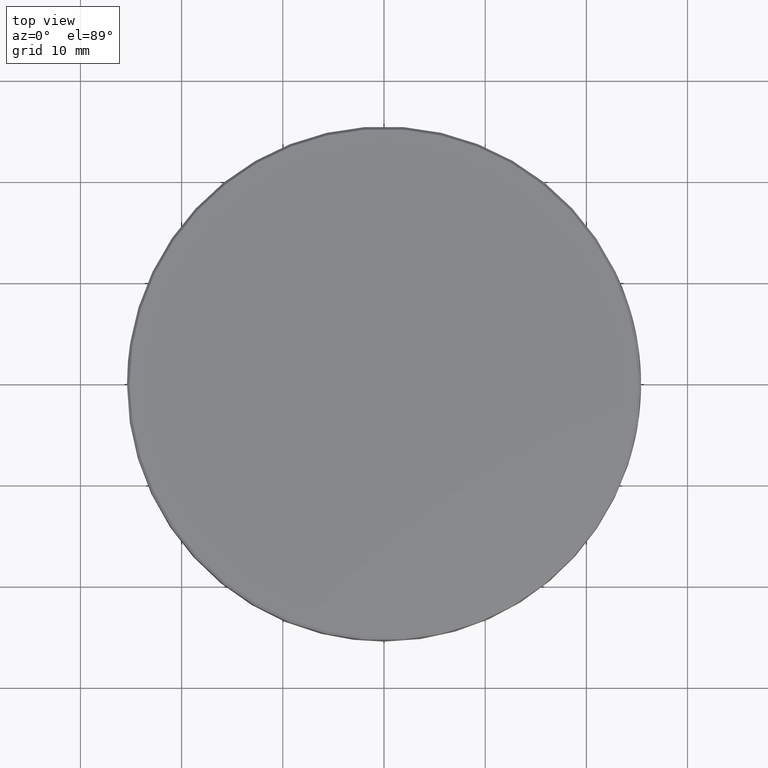
[diagram: clean part render]
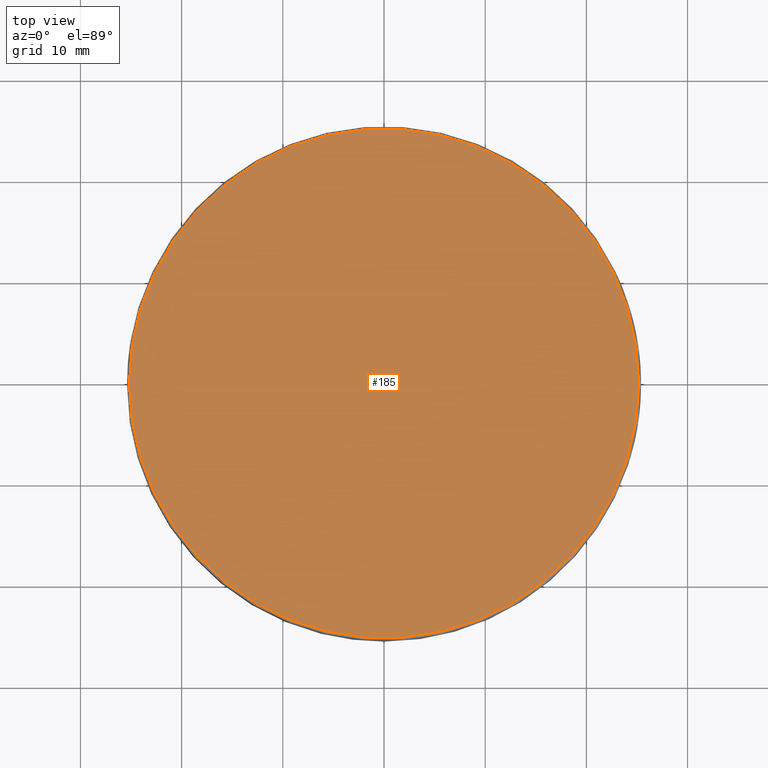
[diagram: same view with one face highlighted and labeled with its STEP entity id]
A machine part, top view. The second image highlights one B-rep face of the part: STEP entity #185.
In plain terms, the highlighted planar face has unit normal (0, 0, 1).
Its self-contained STEP definition (entity closure, byte-faithful):
#3 = CARTESIAN_POINT ( 'NONE',  ( 0.0000000000000000000, 0.0000000000000000000, 4.000000000000000000 ) ) ;
#4 = DIRECTION ( 'NONE',  ( 1.000000000000000000, 0.0000000000000000000, 0.0000000000000000000 ) ) ;
#5 = DIRECTION ( 'NONE',  ( 0.0000000000000000000, 0.0000000000000000000, 1.000000000000000000 ) ) ;
#6 = CARTESIAN_POINT ( 'NONE',  ( 0.0000000000000000000, 0.0000000000000000000, 4.000000000000000000 ) ) ;
#7 = CIRCLE ( 'NONE', #118, 25.14999999999998800 ) ;
#9 = PLANE ( 'NONE',  #49 ) ;
#13 = FACE_OUTER_BOUND ( 'NONE', #187, .T. ) ;
#49 = AXIS2_PLACEMENT_3D ( 'NONE', #3, #120, #2666 ) ;
#118 = AXIS2_PLACEMENT_3D ( 'NONE', #6, #5, #4 ) ;
#120 = DIRECTION ( 'NONE',  ( 0.0000000000000000000, 0.0000000000000000000, 1.000000000000000000 ) ) ;
#182 = EDGE_CURVE ( 'NONE', #2462, #2476, #7, .T. ) ;
#185 = ADVANCED_FACE ( 'NONE', ( #13 ), #9, .T. ) ;
#187 = EDGE_LOOP ( 'NONE', ( #189, #188 ) ) ;
#188 = ORIENTED_EDGE ( 'NONE', *, *, #2464, .T. ) ;
#189 = ORIENTED_EDGE ( 'NONE', *, *, #182, .T. ) ;
#989 = CARTESIAN_POINT ( 'NONE',  ( 0.0000000000000000000, 0.0000000000000000000, 4.000000000000000000 ) ) ;
#990 = CIRCLE ( 'NONE', #1067, 25.14999999999998800 ) ;
#1024 = CARTESIAN_POINT ( 'NONE',  ( 25.14999999999998800, 3.095294784844934600E-015, 4.000000000000000000 ) ) ;
#1047 = DIRECTION ( 'NONE',  ( 1.000000000000000000, 0.0000000000000000000, 0.0000000000000000000 ) ) ;
#1048 = DIRECTION ( 'NONE',  ( 0.0000000000000000000, 0.0000000000000000000, 1.000000000000000000 ) ) ;
#1055 = CARTESIAN_POINT ( 'NONE',  ( -25.14999999999998800, 0.0000000000000000000, 4.000000000000000000 ) ) ;
#1067 = AXIS2_PLACEMENT_3D ( 'NONE', #989, #1048, #1047 ) ;
#2462 = VERTEX_POINT ( 'NONE', #1055 ) ;
#2464 = EDGE_CURVE ( 'NONE', #2476, #2462, #990, .T. ) ;
#2476 = VERTEX_POINT ( 'NONE', #1024 ) ;
#2666 = DIRECTION ( 'NONE',  ( 1.000000000000000000, 0.0000000000000000000, -0.0000000000000000000 ) ) ;